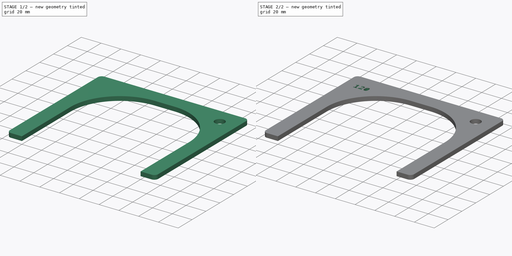
[diagram: build sequence overview — one tinted view per stage of 2, left to right]
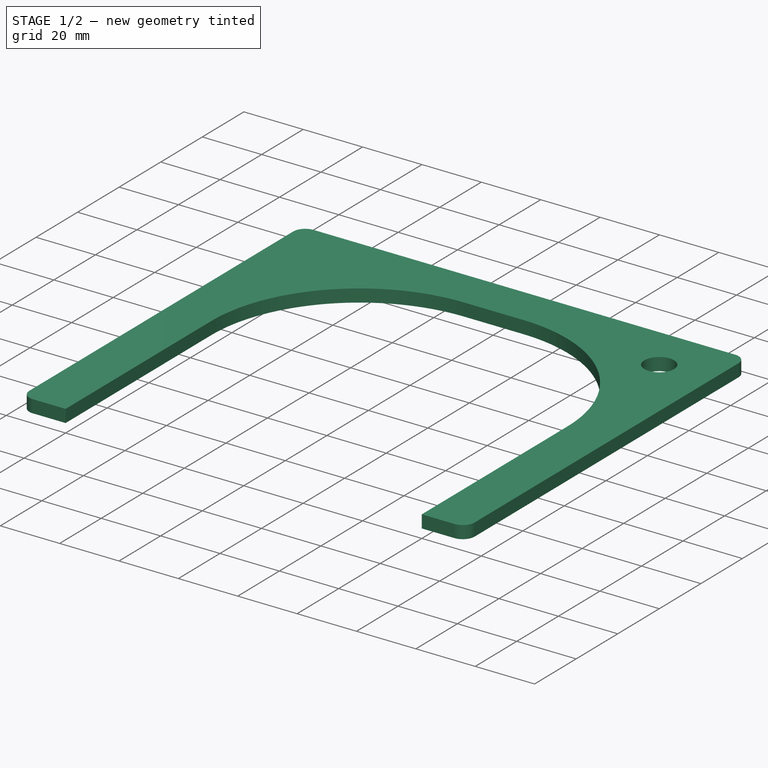
[diagram: stage 1 of 2 — iso view after this stage's code; geometry added in this stage tinted green]
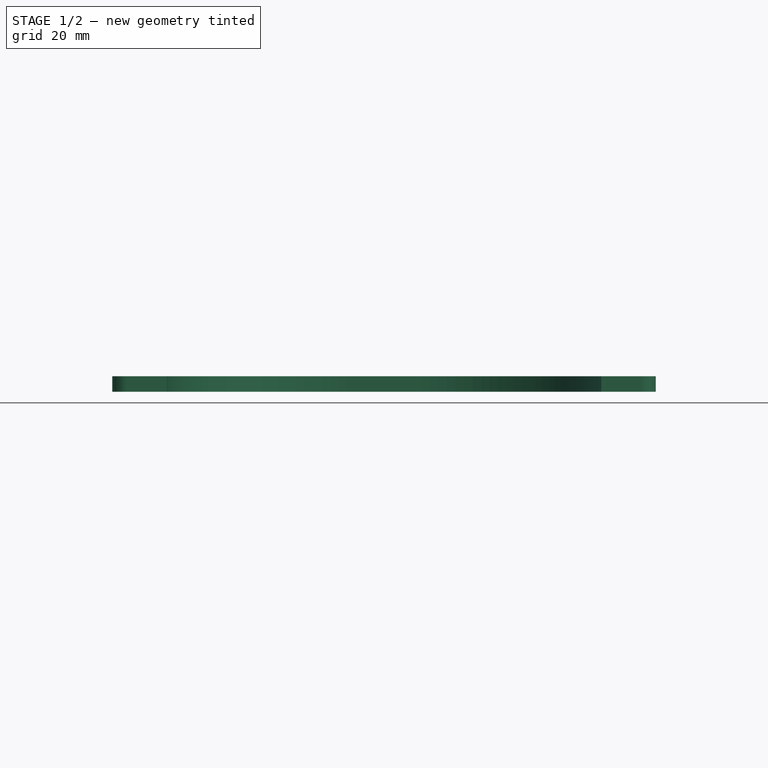
[diagram: stage 1 of 2 — front view after this stage's code; geometry added in this stage tinted green]
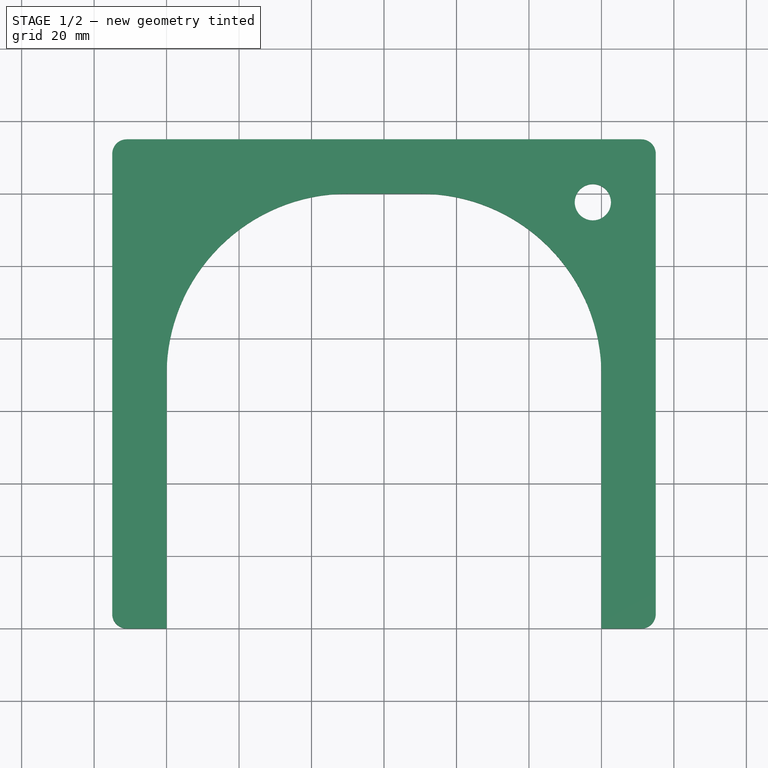
[diagram: stage 1 of 2 — top view after this stage's code; geometry added in this stage tinted green]
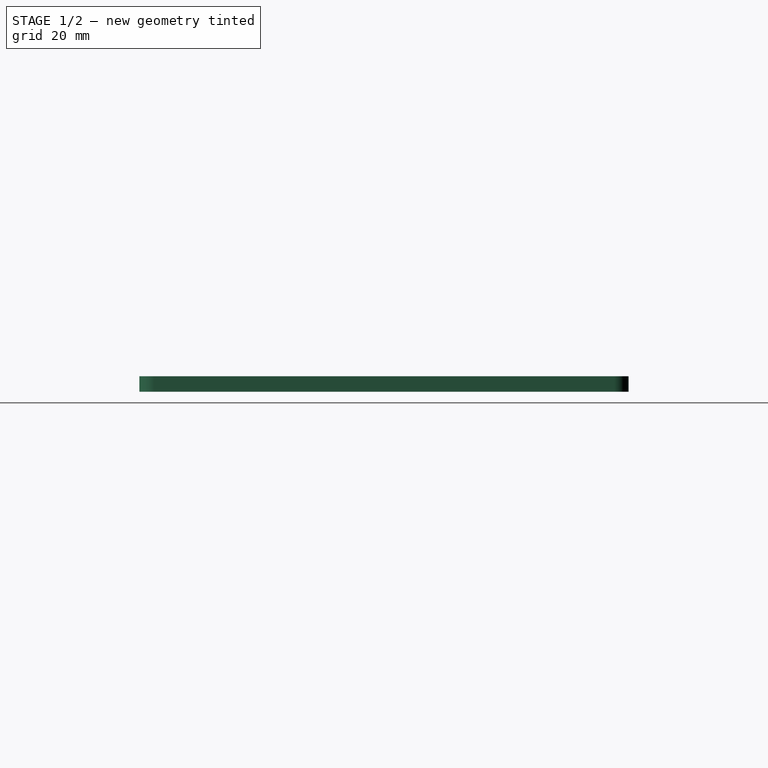
[diagram: stage 1 of 2 — right view after this stage's code; geometry added in this stage tinted green]
FCSTD DOCUMENT  (FreeCAD 1.0R)
Label: hub-measurement
License: All rights reserved
LicenseURL: https://en.wikipedia.org/wiki/All_rights_reserved
objects: Part::Part2DObjectPython×6, PartDesign::SubShapeBinder×5, Sketcher::SketchObject×2, PartDesign::Pad×1, Spreadsheet::Sheet×1, PartDesign::Pocket×1, PartDesign::Body×1
note: 22 computed .brp shape members not serialized (recipe doc carries the construction recipe); baked Part::Feature solids carry a one-line shape summary decoded from their .brp

FEATURE [Sketcher::SketchObject] Sketch002  label="main shape"
  ArcFitTolerance = 1e-06
  AttachmentSupport = -> [XY_Plane001]
  FullyConstrained = true
  MakeInternals = false
  MapMode = 5
  expr: Constraints[17] = .Constraints.inner_fillet_radius
  expr: Constraints[29] = .Constraints.thickness
  expr: Constraints[31] = .Constraints.outer_fillet_radius
  expr: Constraints[32] = .Constraints.outer_fillet_radius
  expr: Constraints[33] = .Constraints.outer_fillet_radius
  expr: Constraints[34] = .Constraints.thickness
  expr: Constraints[9] = <<Spreadsheet: the opening size is set here>>.opening
  sketch-geometry (19):
    g0: LineSegment StartX=-15 StartY=4 StartZ=0 EndX=-15 EndY=131 EndZ=0
    g1: LineSegment StartX=-11 StartY=135 StartZ=0 EndX=131 EndY=135 EndZ=0
    g2: LineSegment StartX=135 StartY=131 StartZ=0 EndX=135 EndY=4 EndZ=0
    g3: LineSegment StartX=131 StartY=0 StartZ=0 EndX=120 EndY=0 EndZ=0
    g4: LineSegment StartX=120 StartY=0 StartZ=0 EndX=120 EndY=70 EndZ=0
    g5: LineSegment StartX=70 StartY=120 StartZ=0 EndX=50 EndY=120 EndZ=0
    g6: LineSegment StartX=0 StartY=70 StartZ=0 EndX=0 EndY=0 EndZ=0
    g7: LineSegment StartX=0 StartY=0 StartZ=0 EndX=-11 EndY=0 EndZ=0
    g8: ArcOfCircle CenterX=50 CenterY=70 CenterZ=0 NormalX=0 NormalY=0 NormalZ=1 AngleXU=0 Radius=50 StartAngle=1.5708 EndAngle=3.14159
    g9: ArcOfCircle CenterX=70 CenterY=70 CenterZ=0 NormalX=0 NormalY=0 NormalZ=1 AngleXU=0 Radius=50 StartAngle=1e-16 EndAngle=1.5708
    g10: LineSegment [constr] StartX=60 StartY=135 StartZ=0 EndX=60 EndY=120 EndZ=0
    g11: ArcOfCircle CenterX=131 CenterY=131 CenterZ=0 NormalX=0 NormalY=0 NormalZ=1 AngleXU=0 Radius=4 StartAngle=7e-16 EndAngle=1.5708
    g12: ArcOfCircle CenterX=-11 CenterY=131 CenterZ=0 NormalX=0 NormalY=0 NormalZ=1 AngleXU=0 Radius=4 StartAngle=1.5708 EndAngle=3.14159
    g13: ArcOfCircle CenterX=-11 CenterY=4 CenterZ=0 NormalX=0 NormalY=0 NormalZ=1 AngleXU=0 Radius=4 StartAngle=3.14159 EndAngle=4.71239
    g14: ArcOfCircle CenterX=131 CenterY=4 CenterZ=0 NormalX=0 NormalY=0 NormalZ=1 AngleXU=0 Radius=4 StartAngle=4.71239 EndAngle=6.28319
    g15: Circle CenterX=117.635 CenterY=117.635 CenterZ=0 NormalX=0 NormalY=0 NormalZ=1 AngleXU=0 Radius=5
    g16: LineSegment [constr] StartX=117.635 StartY=117.635 StartZ=0 EndX=105.355 EndY=105.355 EndZ=0
    g17: LineSegment [constr] StartX=117.635 StartY=117.635 StartZ=0 EndX=117.635 EndY=135 EndZ=0
    g18: LineSegment [constr] StartX=117.635 StartY=117.635 StartZ=0 EndX=135 EndY=117.635 EndZ=0
  constraints (49):
    c: Vertical(g0)
    c: Horizontal(g1)
    c: Coincident(g3,g4)
    c: Vertical(g4)
    c: Horizontal(g5)
    c: Vertical(g6)
    c: Coincident(g6,g7)
    c: Horizontal(g7)
    c: Vertical(g2)
    c: Distance(g4,g6) = 120
    c: Horizontal(g3)
    c: Coincident(g6,g-1)
    c: Tangent(g5,g8) = -1.5708
    c: Tangent(g6,g8) = -1.5708
    c: Tangent(g4,g9) = -1.5708
    c: Tangent(g5,g9) = -1.5708
    c: Radius(g9) = 50  'inner_fillet_radius'
    c: Radius(g8) = 50
    c: Symmetric(g5,g5,g10)
    c: Tangent(g1,g11) = 1.5708
    c: Tangent(g2,g11) = 1.5708
    c: Tangent(g0,g12) = 1.5708
    c: Tangent(g1,g12) = 1.5708
    c: Tangent(g0,g13) = 1.5708
    c: Tangent(g7,g13) = 1.5708
    c: Tangent(g2,g14) = 1.5708
    c: Tangent(g3,g14) = 1.5708
    c: Distance(g10,g-1) = 120  'depth'
    c: Distance(g6,g0) = 15  'thickness'
    c: Distance(g4,g2) = 15
    c: Radius(g14) = 4  'outer_fillet_radius'
    c: Radius(g13) = 4
    c: Radius(g12) = 4
    c: Radius(g11) = 4
    c: Distance(g10,g10) = 15
    c: PointOnObject(g3,g-1)
    c: Symmetric(g1,g1,g10)
    c: Coincident(g16,g15)
    c: PointOnObject(g16,g9)
    c: Coincident(g17,g15)
    c: PointOnObject(g17,g1)
    c: Vertical(g17)
    c: Coincident(g18,g15)
    c: PointOnObject(g18,g2)
    c: Horizontal(g18)
    c: Equal(g17,g18)
    c: Equal(g18,g16)
    c: Radius(g15) = 5
    c: Perpendicular(g16,g9,g16) = 4.71239
FEATURE [PartDesign::Pad] Pad002  label="main extrusion"
  Direction = (0,0,1)
  Length = 4.3
  Length2 = 10
  Profile = -> Sketch002
  ReferenceAxis = -> Sketch002 [N_Axis]
  Refine = true
  Suppressed = false
  Type = 0
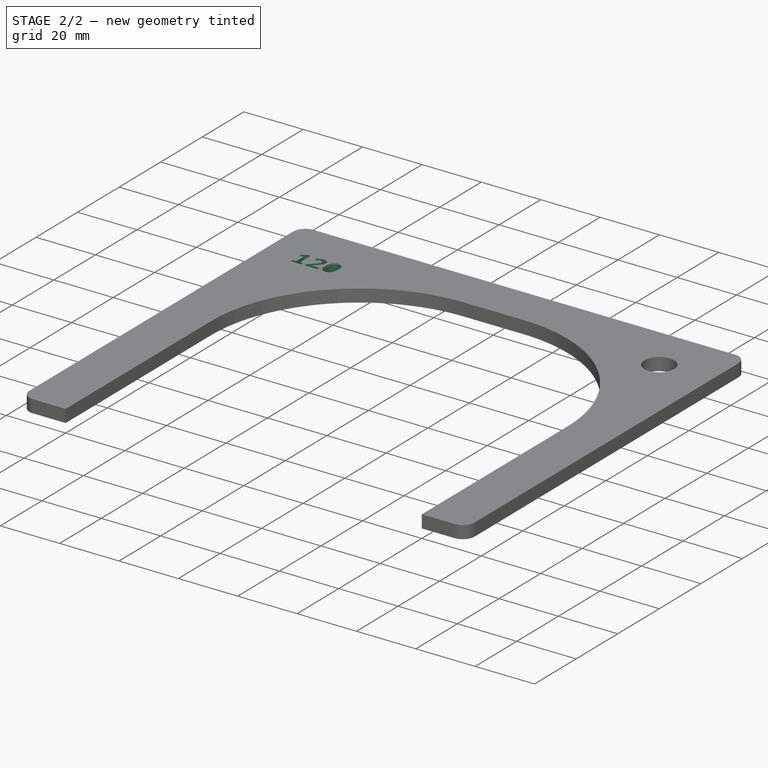
[diagram: stage 2 of 2 — iso view after this stage's code; geometry added in this stage tinted green]
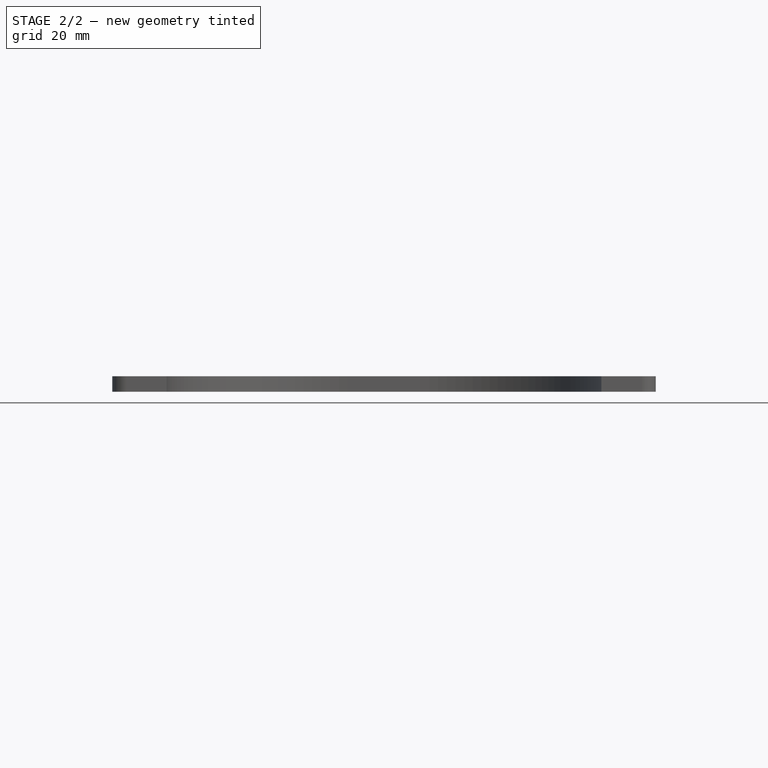
[diagram: stage 2 of 2 — front view after this stage's code; geometry added in this stage tinted green]
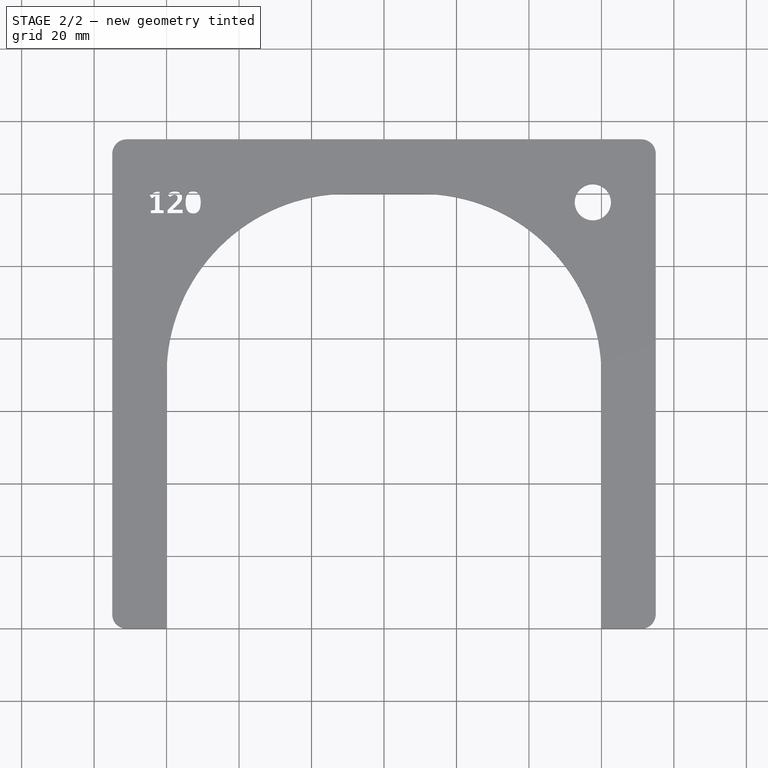
[diagram: stage 2 of 2 — top view after this stage's code; geometry added in this stage tinted green]
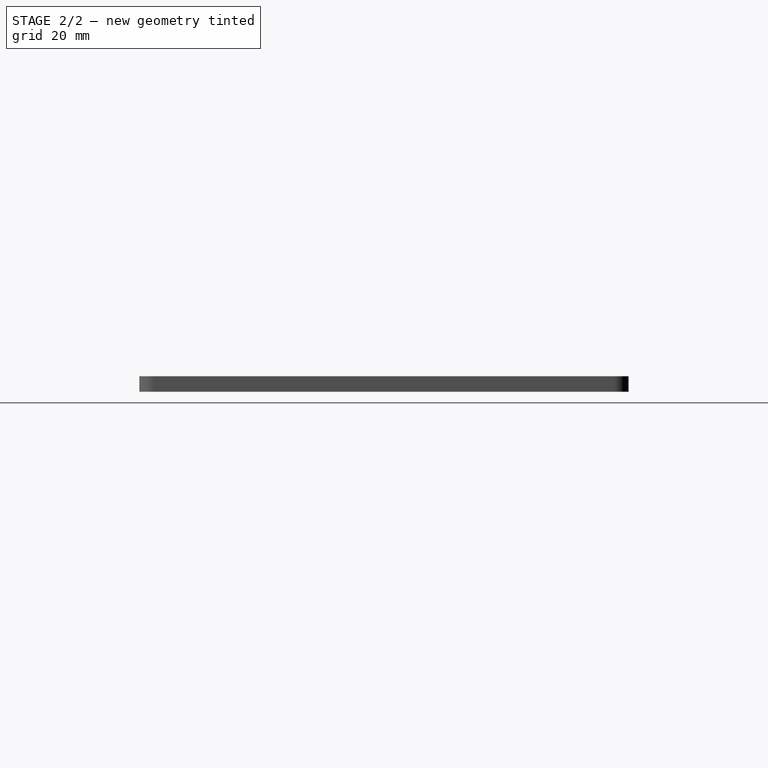
[diagram: stage 2 of 2 — right view after this stage's code; geometry added in this stage tinted green]
FEATURE [Part::Part2DObjectPython] ShapeString  # Draft 2D object (typed FeaturePython)
  AttacherType = Attacher::AttachEnginePoint
  FontFile = <path>
  Fuse = false
  Justification = 4
  JustificationReference = 0
  KeepLeftMargin = false
  MakeFace = true
  MapMode = 39
  ObliqueAngle = 0
  Placement = pos=(2.36544,117.635,0) rot=(0,0,1;0rad)
  ScaleToSize = true
  Size = 6
  String = 120
  Tracking = 0
  expr: String = <<Spreadsheet: the opening size is set here>>.opening
FEATURE [Spreadsheet::Sheet] Spreadsheet  label="Spreadsheet: the opening size is set here"
  cells = A1='variant; B1='opening; A2==hiddenref(Body001.Configuration.String); B2(opening)==.B3; A3='size120; B3=120; A4='size126; B4=126; A5='size130; B5=130; A6='size135; B6=135; A7='size142; B7=142
  expr: .cells.Bind.B2.B2 = tuple(.cells; <<B>> + str(hiddenref(Body001.Configuration) + 3); <<B>> + str(hiddenref(Body001.Configuration) + 3))
FEATURE [Sketcher::SketchObject] Sketch  label="label symmetry point"
  ArcFitTolerance = 1e-06
  AttachmentSupport = -> [XY_Plane001]
  ExternalGeometry = -> [Pad002]
  FullyConstrained = true
  MakeInternals = false
  MapMode = 5
  sketch-geometry (3):
    g0: GeomPoint X=2.36544 Y=117.635 Z=0
    g1: LineSegment [constr] StartX=-15 StartY=117.635 StartZ=0 EndX=135 EndY=117.635 EndZ=0
    g2: GeomPoint [constr] X=60 Y=117.635 Z=0
  constraints (6):
    c: PointOnObject(g1,g-4)
    c: PointOnObject(g1,g-5)
    c: Horizontal(g1)
    c: PointOnObject(g-3,g1)
    c: Symmetric(g1,g1,g2)
    c: Symmetric(g-3,g0,g2)
FEATURE [PartDesign::Pocket] Pocket
  BaseFeature = -> Pad002
  Direction = (0,0,-1)
  Length = 5
  Length2 = 5
  Profile = -> ShapeString
  ReferenceAxis = -> ShapeString [N_Axis]
  Refine = true
  Reversed = true
  Suppressed = false
  Type = 1
FEATURE [PartDesign::Body] Body001
  AllowCompound = false
  Configuration = 0
  Group = -> [Sketch002,Pad002,ShapeString,Sketch,Pocket]
  Origin = -> Origin001
  Tip = -> Pocket
  expr: .Configuration.Enum = Spreadsheet.cells[<<A3:|>>]
FEATURE [PartDesign::SubShapeBinder] Binder_size120
  BindCopyOnChange = 1
  BindMode = 0
  ClaimChildren = false
  Configuration = 0
  Fuse = false
  MakeFace = true
  OffsetFill = false
  OffsetIntersection = false
  OffsetJoinType = 0
  OffsetOpenResult = false
  PartialLoad = false
  Placement = pos=(149,-170,0) rot=(0,0,1;0rad)
  Refine = true
  Relative = true
  Support = -> [Body001]
  _Version = 2
FEATURE [PartDesign::SubShapeBinder] Binder_size126
  BindCopyOnChange = 2
  BindMode = 0
  ClaimChildren = false
  Configuration = 1
  Fuse = false
  MakeFace = true
  OffsetFill = false
  OffsetIntersection = false
  OffsetJoinType = 0
  OffsetOpenResult = false
  PartialLoad = false
  Placement = pos=(285,305,0) rot=(0,1,0;3.14159rad)
  Refine = true
  Relative = true
  Support = -> [Body001]
  _Version = 2
FEATURE [PartDesign::SubShapeBinder] Binder_size130
  BindCopyOnChange = 2
  BindMode = 0
  ClaimChildren = false
  Configuration = 2
  Fuse = false
  MakeFace = true
  OffsetFill = false
  OffsetIntersection = false
  OffsetJoinType = 0
  OffsetOpenResult = false
  PartialLoad = false
  Placement = pos=(-6,305,0) rot=(0,0,1;0rad)
  Refine = true
  Relative = true
  Support = -> [Body001]
  _Version = 2
FEATURE [PartDesign::SubShapeBinder] Binder_size135
  BindCopyOnChange = 2
  BindMode = 0
  ClaimChildren = false
  Configuration = 3
  Fuse = false
  MakeFace = true
  OffsetFill = false
  OffsetIntersection = false
  OffsetJoinType = 0
  OffsetOpenResult = false
  PartialLoad = false
  Placement = pos=(-7,281,0) rot=(-1,0,0;3.14159rad)
  Refine = true
  Relative = true
  Support = -> [Body001]
  _Version = 2
FEATURE [PartDesign::SubShapeBinder] Binder_size142
  BindCopyOnChange = 2
  BindMode = 0
  ClaimChildren = false
  Configuration = 4
  Fuse = false
  MakeFace = true
  OffsetFill = false
  OffsetIntersection = false
  OffsetJoinType = 0
  OffsetOpenResult = false
  PartialLoad = false
  Placement = pos=(213,420,0) rot=(0,0,-1;3.14159rad)
  Refine = true
  Relative = true
  Support = -> [Body001]
  _Version = 2
FEATURE [Part::Part2DObjectPython] Shape2DView  # Draft 2D object (typed FeaturePython)
  AutoUpdate = true
  Base = -> Binder_size142
  Clip = false
  FuseArch = false
  HiddenLines = false
  InPlace = true
  OnlySolids = false
  Projection = (0,0,1)
  ProjectionMode = 0
  SegmentLength = 0.05
  Tessellation = false
  VisibleOnly = false
FEATURE [Part::Part2DObjectPython] Shape2DView001  # Draft 2D object (typed FeaturePython)
  AutoUpdate = true
  Base = -> Binder_size120
  Clip = false
  FuseArch = false
  HiddenLines = false
  InPlace = true
  OnlySolids = false
  Projection = (0,0,1)
  ProjectionMode = 0
  SegmentLength = 0.05
  Tessellation = false
  VisibleOnly = false
FEATURE [Part::Part2DObjectPython] Shape2DView002  # Draft 2D object (typed FeaturePython)
  AutoUpdate = true
  Base = -> Binder_size126
  Clip = false
  FuseArch = false
  HiddenLines = false
  InPlace = true
  OnlySolids = false
  Projection = (0,0,1)
  ProjectionMode = 0
  SegmentLength = 0.05
  Tessellation = false
  VisibleOnly = false
FEATURE [Part::Part2DObjectPython] Shape2DView003  # Draft 2D object (typed FeaturePython)
  AutoUpdate = true
  Base = -> Binder_size130
  Clip = false
  FuseArch = false
  HiddenLines = false
  InPlace = true
  OnlySolids = false
  Projection = (0,0,1)
  ProjectionMode = 0
  SegmentLength = 0.05
  Tessellation = false
  VisibleOnly = false
FEATURE [Part::Part2DObjectPython] Shape2DView004  # Draft 2D object (typed FeaturePython)
  AutoUpdate = true
  Base = -> Binder_size135
  Clip = false
  FuseArch = false
  HiddenLines = false
  InPlace = true
  OnlySolids = false
  Projection = (0,0,1)
  ProjectionMode = 0
  SegmentLength = 0.05
  Tessellation = false
  VisibleOnly = false
note: 1 file-system path scrubbed to <path> (originals preserved in the JSON sidecar)
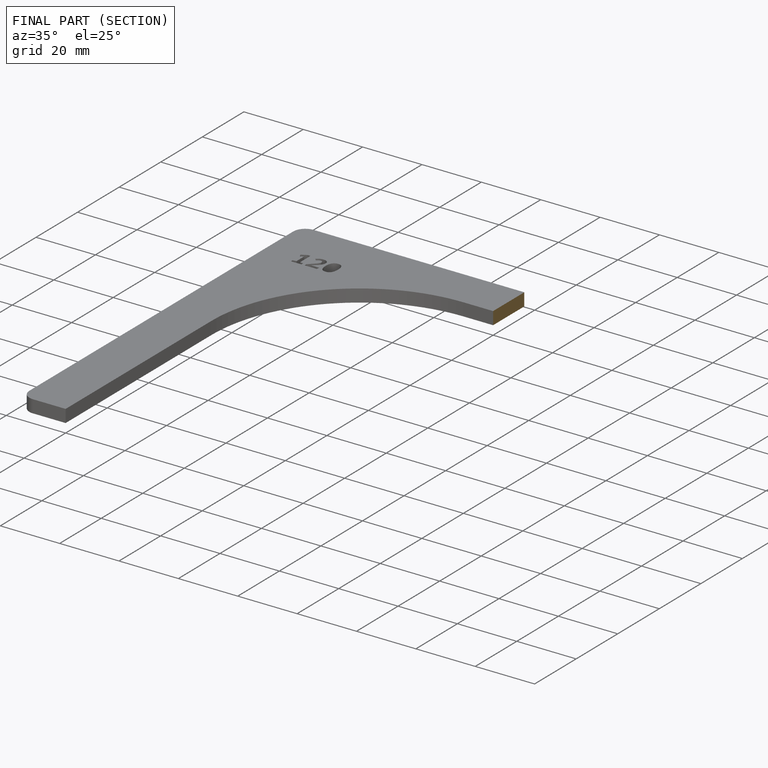
[diagram: finished part — half-section view (interior)]
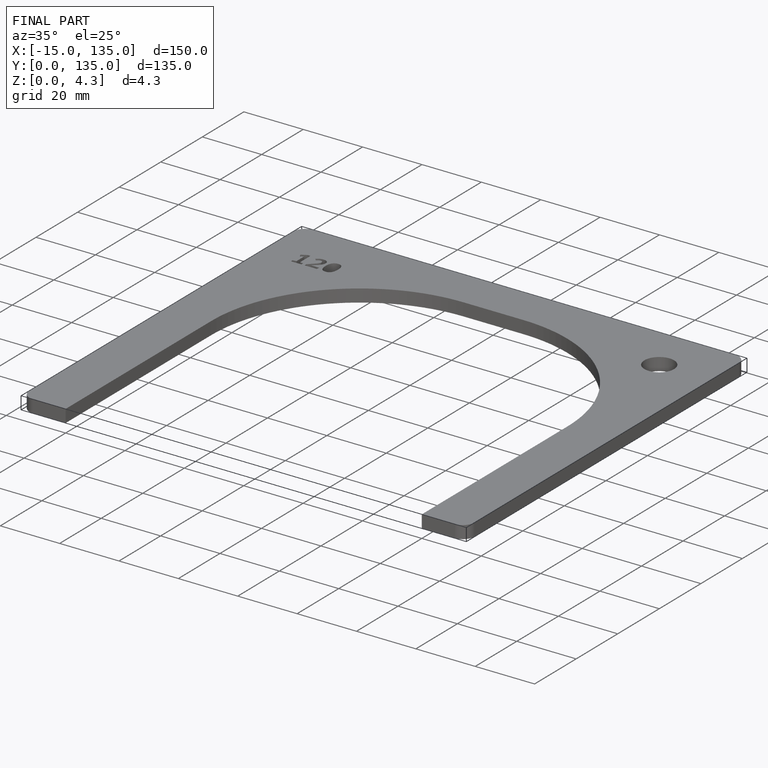
[diagram: finished part — iso view with bounding-box wireframe]
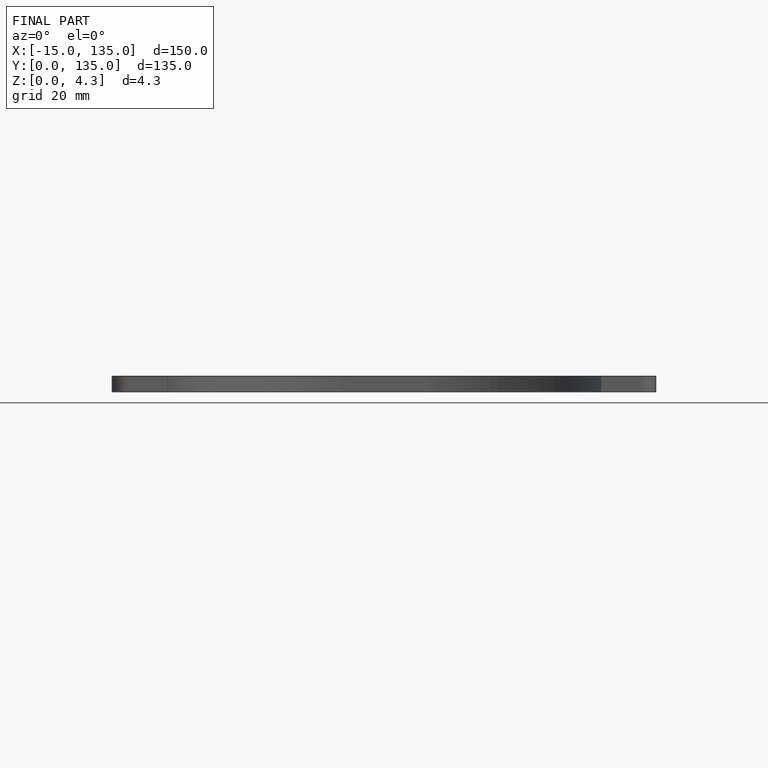
[diagram: finished part — front view with bounding-box wireframe]
